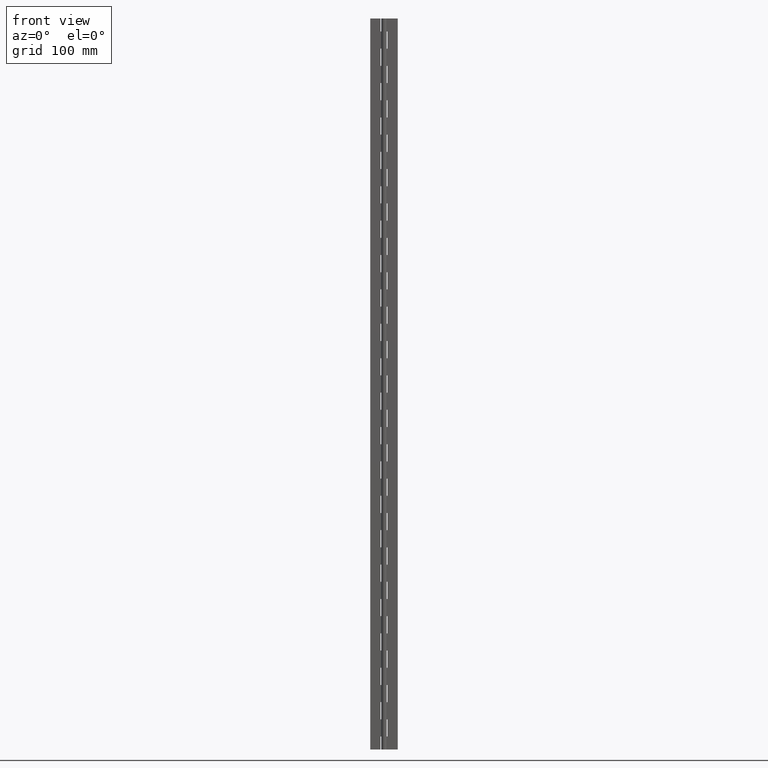
[diagram: clean part render]
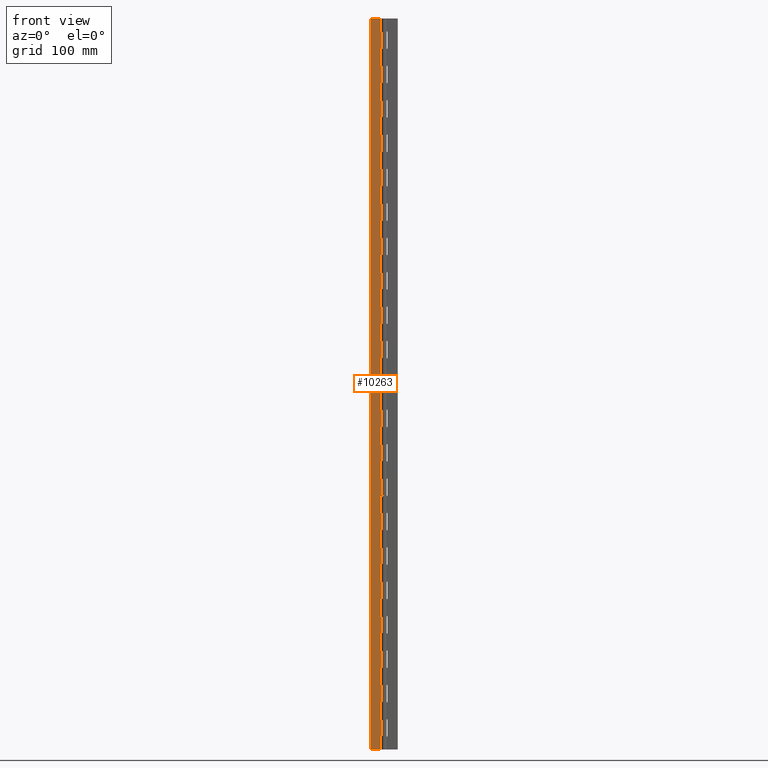
[diagram: same view with one face highlighted and labeled with its STEP entity id]
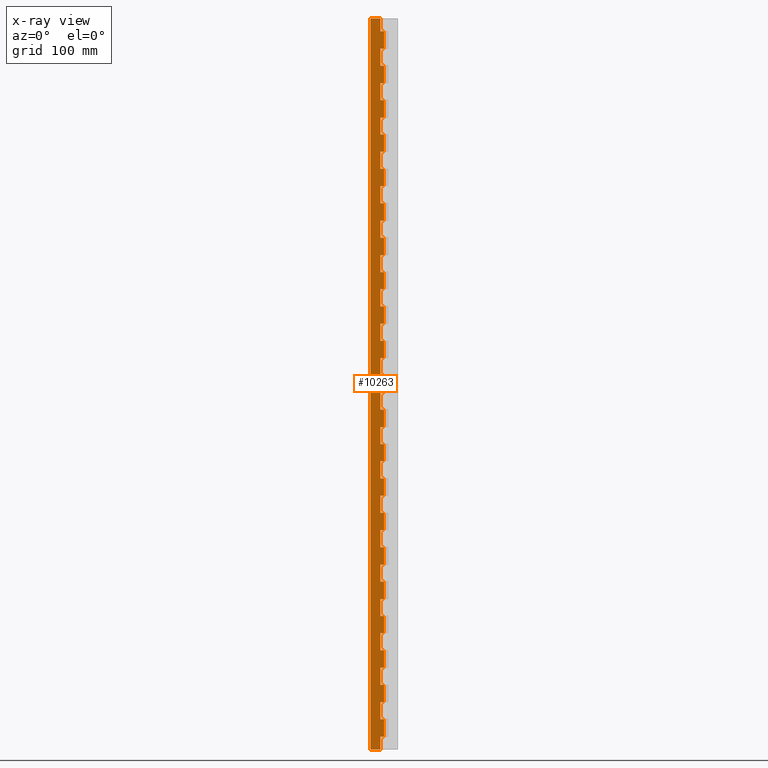
[diagram: x-ray of the same camera — body ghosted, the highlighted face saturated]
A machine part, front view. The second image highlights one B-rep face of the part: STEP entity #10263.
The next image is the same camera in x-ray: the body ghosted, the highlighted face saturated — about 0% of this face is hidden behind the body in this view.
In plain terms, the highlighted face is a freeform B-spline surface patch.
Its self-contained STEP definition (entity closure, byte-faithful):
#6327=CARTESIAN_POINT('',(1.071563E-016,1.750000000000000,15.000022000000151));
#6328=VERTEX_POINT('',#6327);
#6348=CARTESIAN_POINT('',(-4.0,1.750000000000030,15.000022000000151));
#6349=VERTEX_POINT('',#6348);
#6350=CARTESIAN_POINT('',(1.071563E-016,1.750000000000000,15.000022000000151));
#6351=CARTESIAN_POINT('',(-4.0,1.750000000000030,15.000022000000151));
#6352=QUASI_UNIFORM_CURVE('',1,(#6350,#6351),.UNSPECIFIED.,.F.,.U.);
#6353=EDGE_CURVE('',#6328,#6349,#6352,.T.);
#6375=CARTESIAN_POINT('',(-4.0,1.750000000000000,0.0));
#6376=VERTEX_POINT('',#6375);
#6377=CARTESIAN_POINT('',(-4.0,1.750000000000030,15.000022000000151));
#6378=CARTESIAN_POINT('',(-4.0,1.750000000000000,0.0));
#6379=QUASI_UNIFORM_CURVE('',1,(#6377,#6378),.UNSPECIFIED.,.F.,.U.);
#6380=EDGE_CURVE('',#6349,#6376,#6379,.T.);
#6433=CARTESIAN_POINT('',(-4.0,1.750000000000000,35.000022000000087));
#6434=VERTEX_POINT('',#6433);
#6440=CARTESIAN_POINT('',(1.071563E-016,1.750000000000000,35.000022000000087));
#6441=VERTEX_POINT('',#6440);
#6442=CARTESIAN_POINT('',(-4.0,1.750000000000000,35.000022000000087));
#6443=CARTESIAN_POINT('',(1.071563E-016,1.750000000000000,35.000022000000087));
#6444=QUASI_UNIFORM_CURVE('',1,(#6442,#6443),.UNSPECIFIED.,.F.,.U.);
#6445=EDGE_CURVE('',#6434,#6441,#6444,.T.);
#6511=CARTESIAN_POINT('',(1.071563E-016,1.750000000000000,55.000022000000101));
#6512=VERTEX_POINT('',#6511);
#6532=CARTESIAN_POINT('',(-4.0,1.750000000000030,55.000022000000101));
#6533=VERTEX_POINT('',#6532);
#6534=CARTESIAN_POINT('',(1.071563E-016,1.750000000000000,55.000022000000101));
#6535=CARTESIAN_POINT('',(-4.0,1.750000000000030,55.000022000000101));
#6536=QUASI_UNIFORM_CURVE('',1,(#6534,#6535),.UNSPECIFIED.,.F.,.U.);
#6537=EDGE_CURVE('',#6512,#6533,#6536,.T.);
#6559=CARTESIAN_POINT('',(-4.0,1.750000000000030,55.000022000000101));
#6560=CARTESIAN_POINT('',(-4.0,1.750000000000000,35.000022000000087));
#6561=QUASI_UNIFORM_CURVE('',1,(#6559,#6560),.UNSPECIFIED.,.F.,.U.);
#6562=EDGE_CURVE('',#6533,#6434,#6561,.T.);
#6609=CARTESIAN_POINT('',(-4.0,1.750000000000000,75.000022000000101));
#6610=VERTEX_POINT('',#6609);
#6616=CARTESIAN_POINT('',(1.071563E-016,1.750000000000000,75.000022000000101));
#6617=VERTEX_POINT('',#6616);
#6618=CARTESIAN_POINT('',(-4.0,1.750000000000000,75.000022000000101));
#6619=CARTESIAN_POINT('',(1.071563E-016,1.750000000000000,75.000022000000101));
#6620=QUASI_UNIFORM_CURVE('',1,(#6618,#6619),.UNSPECIFIED.,.F.,.U.);
#6621=EDGE_CURVE('',#6610,#6617,#6620,.T.);
#6687=CARTESIAN_POINT('',(1.071563E-016,1.750000000000000,95.000022000000101));
#6688=VERTEX_POINT('',#6687);
#6708=CARTESIAN_POINT('',(-4.0,1.750000000000030,95.000022000000101));
#6709=VERTEX_POINT('',#6708);
#6710=CARTESIAN_POINT('',(1.071563E-016,1.750000000000000,95.000022000000101));
#6711=CARTESIAN_POINT('',(-4.0,1.750000000000030,95.000022000000101));
#6712=QUASI_UNIFORM_CURVE('',1,(#6710,#6711),.UNSPECIFIED.,.F.,.U.);
#6713=EDGE_CURVE('',#6688,#6709,#6712,.T.);
#6735=CARTESIAN_POINT('',(-4.0,1.750000000000030,95.000022000000101));
#6736=CARTESIAN_POINT('',(-4.0,1.750000000000000,75.000022000000101));
#6737=QUASI_UNIFORM_CURVE('',1,(#6735,#6736),.UNSPECIFIED.,.F.,.U.);
#6738=EDGE_CURVE('',#6709,#6610,#6737,.T.);
#6785=CARTESIAN_POINT('',(-4.0,1.750000000000000,115.000022000000200));
#6786=VERTEX_POINT('',#6785);
#6792=CARTESIAN_POINT('',(1.071563E-016,1.750000000000000,115.000022000000200));
#6793=VERTEX_POINT('',#6792);
#6794=CARTESIAN_POINT('',(-4.0,1.750000000000000,115.000022000000200));
#6795=CARTESIAN_POINT('',(1.071563E-016,1.750000000000000,115.000022000000200));
#6796=QUASI_UNIFORM_CURVE('',1,(#6794,#6795),.UNSPECIFIED.,.F.,.U.);
#6797=EDGE_CURVE('',#6786,#6793,#6796,.T.);
#6863=CARTESIAN_POINT('',(1.071563E-016,1.750000000000000,135.000022000000200));
#6864=VERTEX_POINT('',#6863);
#6884=CARTESIAN_POINT('',(-4.0,1.750000000000030,135.000022000000200));
#6885=VERTEX_POINT('',#6884);
#6886=CARTESIAN_POINT('',(1.071563E-016,1.750000000000000,135.000022000000200));
#6887=CARTESIAN_POINT('',(-4.0,1.750000000000030,135.000022000000200));
#6888=QUASI_UNIFORM_CURVE('',1,(#6886,#6887),.UNSPECIFIED.,.F.,.U.);
#6889=EDGE_CURVE('',#6864,#6885,#6888,.T.);
#6911=CARTESIAN_POINT('',(-4.0,1.750000000000030,135.000022000000200));
#6912=CARTESIAN_POINT('',(-4.0,1.750000000000000,115.000022000000200));
#6913=QUASI_UNIFORM_CURVE('',1,(#6911,#6912),.UNSPECIFIED.,.F.,.U.);
#6914=EDGE_CURVE('',#6885,#6786,#6913,.T.);
#6961=CARTESIAN_POINT('',(-4.0,1.750000000000000,155.000022000000000));
#6962=VERTEX_POINT('',#6961);
#6968=CARTESIAN_POINT('',(1.071563E-016,1.750000000000000,155.000022000000000));
#6969=VERTEX_POINT('',#6968);
#6970=CARTESIAN_POINT('',(-4.0,1.750000000000000,155.000022000000000));
#6971=CARTESIAN_POINT('',(1.071563E-016,1.750000000000000,155.000022000000000));
#6972=QUASI_UNIFORM_CURVE('',1,(#6970,#6971),.UNSPECIFIED.,.F.,.U.);
#6973=EDGE_CURVE('',#6962,#6969,#6972,.T.);
#7039=CARTESIAN_POINT('',(1.071563E-016,1.750000000000000,175.000022000000000));
#7040=VERTEX_POINT('',#7039);
#7060=CARTESIAN_POINT('',(-4.0,1.750000000000030,175.000022000000000));
#7061=VERTEX_POINT('',#7060);
#7062=CARTESIAN_POINT('',(1.071563E-016,1.750000000000000,175.000022000000000));
#7063=CARTESIAN_POINT('',(-4.0,1.750000000000030,175.000022000000000));
#7064=QUASI_UNIFORM_CURVE('',1,(#7062,#7063),.UNSPECIFIED.,.F.,.U.);
#7065=EDGE_CURVE('',#7040,#7061,#7064,.T.);
#7087=CARTESIAN_POINT('',(-4.0,1.750000000000030,175.000022000000000));
#7088=CARTESIAN_POINT('',(-4.0,1.750000000000000,155.000022000000000));
#7089=QUASI_UNIFORM_CURVE('',1,(#7087,#7088),.UNSPECIFIED.,.F.,.U.);
#7090=EDGE_CURVE('',#7061,#6962,#7089,.T.);
#7137=CARTESIAN_POINT('',(-4.0,1.750000000000000,195.000022000000000));
#7138=VERTEX_POINT('',#7137);
#7144=CARTESIAN_POINT('',(1.071563E-016,1.750000000000000,195.000022000000000));
#7145=VERTEX_POINT('',#7144);
#7146=CARTESIAN_POINT('',(-4.0,1.750000000000000,195.000022000000000));
#7147=CARTESIAN_POINT('',(1.071563E-016,1.750000000000000,195.000022000000000));
#7148=QUASI_UNIFORM_CURVE('',1,(#7146,#7147),.UNSPECIFIED.,.F.,.U.);
#7149=EDGE_CURVE('',#7138,#7145,#7148,.T.);
#7215=CARTESIAN_POINT('',(1.071563E-016,1.750000000000000,215.000022000000000));
#7216=VERTEX_POINT('',#7215);
#7236=CARTESIAN_POINT('',(-4.0,1.750000000000030,215.000022000000000));
#7237=VERTEX_POINT('',#7236);
#7238=CARTESIAN_POINT('',(1.071563E-016,1.750000000000000,215.000022000000000));
#7239=CARTESIAN_POINT('',(-4.0,1.750000000000030,215.000022000000000));
#7240=QUASI_UNIFORM_CURVE('',1,(#7238,#7239),.UNSPECIFIED.,.F.,.U.);
#7241=EDGE_CURVE('',#7216,#7237,#7240,.T.);
#7263=CARTESIAN_POINT('',(-4.0,1.750000000000030,215.000022000000000));
#7264=CARTESIAN_POINT('',(-4.0,1.750000000000000,195.000022000000000));
#7265=QUASI_UNIFORM_CURVE('',1,(#7263,#7264),.UNSPECIFIED.,.F.,.U.);
#7266=EDGE_CURVE('',#7237,#7138,#7265,.T.);
#7313=CARTESIAN_POINT('',(-4.0,1.750000000000000,235.000022000000000));
#7314=VERTEX_POINT('',#7313);
#7320=CARTESIAN_POINT('',(1.071563E-016,1.750000000000000,235.000022000000000));
#7321=VERTEX_POINT('',#7320);
#7322=CARTESIAN_POINT('',(-4.0,1.750000000000000,235.000022000000000));
#7323=CARTESIAN_POINT('',(1.071563E-016,1.750000000000000,235.000022000000000));
#7324=QUASI_UNIFORM_CURVE('',1,(#7322,#7323),.UNSPECIFIED.,.F.,.U.);
#7325=EDGE_CURVE('',#7314,#7321,#7324,.T.);
#7391=CARTESIAN_POINT('',(1.071563E-016,1.750000000000000,255.000022000000000));
#7392=VERTEX_POINT('',#7391);
#7412=CARTESIAN_POINT('',(-4.0,1.750000000000030,255.000022000000000));
#7413=VERTEX_POINT('',#7412);
#7414=CARTESIAN_POINT('',(1.071563E-016,1.750000000000000,255.000022000000000));
#7415=CARTESIAN_POINT('',(-4.0,1.750000000000030,255.000022000000000));
#7416=QUASI_UNIFORM_CURVE('',1,(#7414,#7415),.UNSPECIFIED.,.F.,.U.);
#7417=EDGE_CURVE('',#7392,#7413,#7416,.T.);
#7439=CARTESIAN_POINT('',(-4.0,1.750000000000030,255.000022000000000));
#7440=CARTESIAN_POINT('',(-4.0,1.750000000000000,235.000022000000000));
#7441=QUASI_UNIFORM_CURVE('',1,(#7439,#7440),.UNSPECIFIED.,.F.,.U.);
#7442=EDGE_CURVE('',#7413,#7314,#7441,.T.);
#7489=CARTESIAN_POINT('',(-4.0,1.750000000000000,275.000022000000000));
#7490=VERTEX_POINT('',#7489);
#7496=CARTESIAN_POINT('',(1.071563E-016,1.750000000000000,275.000022000000000));
#7497=VERTEX_POINT('',#7496);
#7498=CARTESIAN_POINT('',(-4.0,1.750000000000000,275.000022000000000));
#7499=CARTESIAN_POINT('',(1.071563E-016,1.750000000000000,275.000022000000000));
#7500=QUASI_UNIFORM_CURVE('',1,(#7498,#7499),.UNSPECIFIED.,.F.,.U.);
#7501=EDGE_CURVE('',#7490,#7497,#7500,.T.);
#7567=CARTESIAN_POINT('',(1.071563E-016,1.750000000000000,295.000021999999890));
#7568=VERTEX_POINT('',#7567);
#7588=CARTESIAN_POINT('',(-4.0,1.750000000000030,295.000021999999890));
#7589=VERTEX_POINT('',#7588);
#7590=CARTESIAN_POINT('',(1.071563E-016,1.750000000000000,295.000021999999890));
#7591=CARTESIAN_POINT('',(-4.0,1.750000000000030,295.000021999999890));
#7592=QUASI_UNIFORM_CURVE('',1,(#7590,#7591),.UNSPECIFIED.,.F.,.U.);
#7593=EDGE_CURVE('',#7568,#7589,#7592,.T.);
#7615=CARTESIAN_POINT('',(-4.0,1.750000000000030,295.000021999999890));
#7616=CARTESIAN_POINT('',(-4.0,1.750000000000000,275.000022000000000));
#7617=QUASI_UNIFORM_CURVE('',1,(#7615,#7616),.UNSPECIFIED.,.F.,.U.);
#7618=EDGE_CURVE('',#7589,#7490,#7617,.T.);
#7665=CARTESIAN_POINT('',(-4.0,1.750000000000000,315.000022000000000));
#7666=VERTEX_POINT('',#7665);
#7672=CARTESIAN_POINT('',(1.071563E-016,1.750000000000000,315.000022000000000));
#7673=VERTEX_POINT('',#7672);
#7674=CARTESIAN_POINT('',(-4.0,1.750000000000000,315.000022000000000));
#7675=CARTESIAN_POINT('',(1.071563E-016,1.750000000000000,315.000022000000000));
#7676=QUASI_UNIFORM_CURVE('',1,(#7674,#7675),.UNSPECIFIED.,.F.,.U.);
#7677=EDGE_CURVE('',#7666,#7673,#7676,.T.);
#7743=CARTESIAN_POINT('',(1.071563E-016,1.750000000000000,335.000022000000000));
#7744=VERTEX_POINT('',#7743);
#7764=CARTESIAN_POINT('',(-4.0,1.750000000000030,335.000022000000000));
#7765=VERTEX_POINT('',#7764);
#7766=CARTESIAN_POINT('',(1.071563E-016,1.750000000000000,335.000022000000000));
#7767=CARTESIAN_POINT('',(-4.0,1.750000000000030,335.000022000000000));
#7768=QUASI_UNIFORM_CURVE('',1,(#7766,#7767),.UNSPECIFIED.,.F.,.U.);
#7769=EDGE_CURVE('',#7744,#7765,#7768,.T.);
#7791=CARTESIAN_POINT('',(-4.0,1.750000000000030,335.000022000000000));
#7792=CARTESIAN_POINT('',(-4.0,1.750000000000000,315.000022000000000));
#7793=QUASI_UNIFORM_CURVE('',1,(#7791,#7792),.UNSPECIFIED.,.F.,.U.);
#7794=EDGE_CURVE('',#7765,#7666,#7793,.T.);
#7841=CARTESIAN_POINT('',(-4.0,1.750000000000000,355.000022000000000));
#7842=VERTEX_POINT('',#7841);
#7848=CARTESIAN_POINT('',(1.071563E-016,1.750000000000000,355.000022000000000));
#7849=VERTEX_POINT('',#7848);
#7850=CARTESIAN_POINT('',(-4.0,1.750000000000000,355.000022000000000));
#7851=CARTESIAN_POINT('',(1.071563E-016,1.750000000000000,355.000022000000000));
#7852=QUASI_UNIFORM_CURVE('',1,(#7850,#7851),.UNSPECIFIED.,.F.,.U.);
#7853=EDGE_CURVE('',#7842,#7849,#7852,.T.);
#7919=CARTESIAN_POINT('',(1.071563E-016,1.750000000000000,375.000022000000000));
#7920=VERTEX_POINT('',#7919);
#7940=CARTESIAN_POINT('',(-4.0,1.750000000000030,375.000022000000000));
#7941=VERTEX_POINT('',#7940);
#7942=CARTESIAN_POINT('',(1.071563E-016,1.750000000000000,375.000022000000000));
#7943=CARTESIAN_POINT('',(-4.0,1.750000000000030,375.000022000000000));
#7944=QUASI_UNIFORM_CURVE('',1,(#7942,#7943),.UNSPECIFIED.,.F.,.U.);
#7945=EDGE_CURVE('',#7920,#7941,#7944,.T.);
#7967=CARTESIAN_POINT('',(-4.0,1.750000000000030,375.000022000000000));
#7968=CARTESIAN_POINT('',(-4.0,1.750000000000000,355.000022000000000));
#7969=QUASI_UNIFORM_CURVE('',1,(#7967,#7968),.UNSPECIFIED.,.F.,.U.);
#7970=EDGE_CURVE('',#7941,#7842,#7969,.T.);
#8017=CARTESIAN_POINT('',(-4.0,1.750000000000000,395.000022000000000));
#8018=VERTEX_POINT('',#8017);
#8024=CARTESIAN_POINT('',(1.071563E-016,1.750000000000000,395.000022000000000));
#8025=VERTEX_POINT('',#8024);
#8026=CARTESIAN_POINT('',(-4.0,1.750000000000000,395.000022000000000));
#8027=CARTESIAN_POINT('',(1.071563E-016,1.750000000000000,395.000022000000000));
#8028=QUASI_UNIFORM_CURVE('',1,(#8026,#8027),.UNSPECIFIED.,.F.,.U.);
#8029=EDGE_CURVE('',#8018,#8025,#8028,.T.);
#8095=CARTESIAN_POINT('',(1.071563E-016,1.750000000000000,415.000022000000000));
#8096=VERTEX_POINT('',#8095);
#8116=CARTESIAN_POINT('',(-4.0,1.750000000000030,415.000022000000000));
#8117=VERTEX_POINT('',#8116);
#8118=CARTESIAN_POINT('',(1.071563E-016,1.750000000000000,415.000022000000000));
#8119=CARTESIAN_POINT('',(-4.0,1.750000000000030,415.000022000000000));
#8120=QUASI_UNIFORM_CURVE('',1,(#8118,#8119),.UNSPECIFIED.,.F.,.U.);
#8121=EDGE_CURVE('',#8096,#8117,#8120,.T.);
#8143=CARTESIAN_POINT('',(-4.0,1.750000000000030,415.000022000000000));
#8144=CARTESIAN_POINT('',(-4.0,1.750000000000000,395.000022000000000));
#8145=QUASI_UNIFORM_CURVE('',1,(#8143,#8144),.UNSPECIFIED.,.F.,.U.);
#8146=EDGE_CURVE('',#8117,#8018,#8145,.T.);
#8193=CARTESIAN_POINT('',(-4.0,1.750000000000000,435.000022000000000));
#8194=VERTEX_POINT('',#8193);
#8200=CARTESIAN_POINT('',(1.071563E-016,1.750000000000000,435.000022000000000));
#8201=VERTEX_POINT('',#8200);
#8202=CARTESIAN_POINT('',(-4.0,1.750000000000000,435.000022000000000));
#8203=CARTESIAN_POINT('',(1.071563E-016,1.750000000000000,435.000022000000000));
#8204=QUASI_UNIFORM_CURVE('',1,(#8202,#8203),.UNSPECIFIED.,.F.,.U.);
#8205=EDGE_CURVE('',#8194,#8201,#8204,.T.);
#8271=CARTESIAN_POINT('',(1.071563E-016,1.750000000000000,455.000022000000000));
#8272=VERTEX_POINT('',#8271);
#8292=CARTESIAN_POINT('',(-4.0,1.750000000000030,455.000022000000000));
#8293=VERTEX_POINT('',#8292);
#8294=CARTESIAN_POINT('',(1.071563E-016,1.750000000000000,455.000022000000000));
#8295=CARTESIAN_POINT('',(-4.0,1.750000000000030,455.000022000000000));
#8296=QUASI_UNIFORM_CURVE('',1,(#8294,#8295),.UNSPECIFIED.,.F.,.U.);
#8297=EDGE_CURVE('',#8272,#8293,#8296,.T.);
#8319=CARTESIAN_POINT('',(-4.0,1.750000000000030,455.000022000000000));
#8320=CARTESIAN_POINT('',(-4.0,1.750000000000000,435.000022000000000));
#8321=QUASI_UNIFORM_CURVE('',1,(#8319,#8320),.UNSPECIFIED.,.F.,.U.);
#8322=EDGE_CURVE('',#8293,#8194,#8321,.T.);
#8369=CARTESIAN_POINT('',(-4.0,1.750000000000000,475.000022000000000));
#8370=VERTEX_POINT('',#8369);
#8376=CARTESIAN_POINT('',(1.071563E-016,1.750000000000000,475.000022000000000));
#8377=VERTEX_POINT('',#8376);
#8378=CARTESIAN_POINT('',(-4.0,1.750000000000000,475.000022000000000));
#8379=CARTESIAN_POINT('',(1.071563E-016,1.750000000000000,475.000022000000000));
#8380=QUASI_UNIFORM_CURVE('',1,(#8378,#8379),.UNSPECIFIED.,.F.,.U.);
#8381=EDGE_CURVE('',#8370,#8377,#8380,.T.);
#8447=CARTESIAN_POINT('',(1.071563E-016,1.750000000000000,495.000022000000000));
#8448=VERTEX_POINT('',#8447);
#8468=CARTESIAN_POINT('',(-4.0,1.750000000000030,495.000022000000000));
#8469=VERTEX_POINT('',#8468);
#8470=CARTESIAN_POINT('',(1.071563E-016,1.750000000000000,495.000022000000000));
#8471=CARTESIAN_POINT('',(-4.0,1.750000000000030,495.000022000000000));
#8472=QUASI_UNIFORM_CURVE('',1,(#8470,#8471),.UNSPECIFIED.,.F.,.U.);
#8473=EDGE_CURVE('',#8448,#8469,#8472,.T.);
#8495=CARTESIAN_POINT('',(-4.0,1.750000000000030,495.000022000000000));
#8496=CARTESIAN_POINT('',(-4.0,1.750000000000000,475.000022000000000));
#8497=QUASI_UNIFORM_CURVE('',1,(#8495,#8496),.UNSPECIFIED.,.F.,.U.);
#8498=EDGE_CURVE('',#8469,#8370,#8497,.T.);
#8545=CARTESIAN_POINT('',(-4.0,1.750000000000000,515.000021999999940));
#8546=VERTEX_POINT('',#8545);
#8552=CARTESIAN_POINT('',(1.071563E-016,1.750000000000000,515.000021999999940));
#8553=VERTEX_POINT('',#8552);
#8554=CARTESIAN_POINT('',(-4.0,1.750000000000000,515.000021999999940));
#8555=CARTESIAN_POINT('',(1.071563E-016,1.750000000000000,515.000021999999940));
#8556=QUASI_UNIFORM_CURVE('',1,(#8554,#8555),.UNSPECIFIED.,.F.,.U.);
#8557=EDGE_CURVE('',#8546,#8553,#8556,.T.);
#8623=CARTESIAN_POINT('',(1.071563E-016,1.750000000000000,535.000021999999940));
#8624=VERTEX_POINT('',#8623);
#8644=CARTESIAN_POINT('',(-4.0,1.750000000000030,535.000021999999940));
#8645=VERTEX_POINT('',#8644);
#8646=CARTESIAN_POINT('',(1.071563E-016,1.750000000000000,535.000021999999940));
#8647=CARTESIAN_POINT('',(-4.0,1.750000000000030,535.000021999999940));
#8648=QUASI_UNIFORM_CURVE('',1,(#8646,#8647),.UNSPECIFIED.,.F.,.U.);
#8649=EDGE_CURVE('',#8624,#8645,#8648,.T.);
#8671=CARTESIAN_POINT('',(-4.0,1.750000000000030,535.000021999999940));
#8672=CARTESIAN_POINT('',(-4.0,1.750000000000000,515.000021999999940));
#8673=QUASI_UNIFORM_CURVE('',1,(#8671,#8672),.UNSPECIFIED.,.F.,.U.);
#8674=EDGE_CURVE('',#8645,#8546,#8673,.T.);
#8721=CARTESIAN_POINT('',(-4.0,1.750000000000000,555.000021999999940));
#8722=VERTEX_POINT('',#8721);
#8728=CARTESIAN_POINT('',(1.071563E-016,1.750000000000000,555.000021999999940));
#8729=VERTEX_POINT('',#8728);
#8730=CARTESIAN_POINT('',(-4.0,1.750000000000000,555.000021999999940));
#8731=CARTESIAN_POINT('',(1.071563E-016,1.750000000000000,555.000021999999940));
#8732=QUASI_UNIFORM_CURVE('',1,(#8730,#8731),.UNSPECIFIED.,.F.,.U.);
#8733=EDGE_CURVE('',#8722,#8729,#8732,.T.);
#8799=CARTESIAN_POINT('',(1.071563E-016,1.750000000000000,575.000021999999940));
#8800=VERTEX_POINT('',#8799);
#8820=CARTESIAN_POINT('',(-4.0,1.750000000000030,575.000021999999940));
#8821=VERTEX_POINT('',#8820);
#8822=CARTESIAN_POINT('',(1.071563E-016,1.750000000000000,575.000021999999940));
#8823=CARTESIAN_POINT('',(-4.0,1.750000000000030,575.000021999999940));
#8824=QUASI_UNIFORM_CURVE('',1,(#8822,#8823),.UNSPECIFIED.,.F.,.U.);
#8825=EDGE_CURVE('',#8800,#8821,#8824,.T.);
#8847=CARTESIAN_POINT('',(-4.0,1.750000000000030,575.000021999999940));
#8848=CARTESIAN_POINT('',(-4.0,1.750000000000000,555.000021999999940));
#8849=QUASI_UNIFORM_CURVE('',1,(#8847,#8848),.UNSPECIFIED.,.F.,.U.);
#8850=EDGE_CURVE('',#8821,#8722,#8849,.T.);
#8897=CARTESIAN_POINT('',(-4.0,1.750000000000000,595.000022000000060));
#8898=VERTEX_POINT('',#8897);
#8904=CARTESIAN_POINT('',(1.071563E-016,1.750000000000000,595.000022000000060));
#8905=VERTEX_POINT('',#8904);
#8906=CARTESIAN_POINT('',(-4.0,1.750000000000000,595.000022000000060));
#8907=CARTESIAN_POINT('',(1.071563E-016,1.750000000000000,595.000022000000060));
#8908=QUASI_UNIFORM_CURVE('',1,(#8906,#8907),.UNSPECIFIED.,.F.,.U.);
#8909=EDGE_CURVE('',#8898,#8905,#8908,.T.);
#8975=CARTESIAN_POINT('',(1.071563E-016,1.750000000000000,615.000022000000060));
#8976=VERTEX_POINT('',#8975);
#8996=CARTESIAN_POINT('',(-4.0,1.750000000000030,615.000022000000060));
#8997=VERTEX_POINT('',#8996);
#8998=CARTESIAN_POINT('',(1.071563E-016,1.750000000000000,615.000022000000060));
#8999=CARTESIAN_POINT('',(-4.0,1.750000000000030,615.000022000000060));
#9000=QUASI_UNIFORM_CURVE('',1,(#8998,#8999),.UNSPECIFIED.,.F.,.U.);
#9001=EDGE_CURVE('',#8976,#8997,#9000,.T.);
#9023=CARTESIAN_POINT('',(-4.0,1.750000000000030,615.000022000000060));
#9024=CARTESIAN_POINT('',(-4.0,1.750000000000000,595.000022000000060));
#9025=QUASI_UNIFORM_CURVE('',1,(#9023,#9024),.UNSPECIFIED.,.F.,.U.);
#9026=EDGE_CURVE('',#8997,#8898,#9025,.T.);
#9073=CARTESIAN_POINT('',(-4.0,1.750000000000000,635.000022000000060));
#9074=VERTEX_POINT('',#9073);
#9080=CARTESIAN_POINT('',(1.071563E-016,1.750000000000000,635.000022000000060));
#9081=VERTEX_POINT('',#9080);
#9082=CARTESIAN_POINT('',(-4.0,1.750000000000000,635.000022000000060));
#9083=CARTESIAN_POINT('',(1.071563E-016,1.750000000000000,635.000022000000060));
#9084=QUASI_UNIFORM_CURVE('',1,(#9082,#9083),.UNSPECIFIED.,.F.,.U.);
#9085=EDGE_CURVE('',#9074,#9081,#9084,.T.);
#9151=CARTESIAN_POINT('',(1.071563E-016,1.750000000000000,655.000021999999940));
#9152=VERTEX_POINT('',#9151);
#9172=CARTESIAN_POINT('',(-4.0,1.750000000000030,655.000021999999940));
#9173=VERTEX_POINT('',#9172);
#9174=CARTESIAN_POINT('',(1.071563E-016,1.750000000000000,655.000021999999940));
#9175=CARTESIAN_POINT('',(-4.0,1.750000000000030,655.000021999999940));
#9176=QUASI_UNIFORM_CURVE('',1,(#9174,#9175),.UNSPECIFIED.,.F.,.U.);
#9177=EDGE_CURVE('',#9152,#9173,#9176,.T.);
#9199=CARTESIAN_POINT('',(-4.0,1.750000000000030,655.000021999999940));
#9200=CARTESIAN_POINT('',(-4.0,1.750000000000000,635.000022000000060));
#9201=QUASI_UNIFORM_CURVE('',1,(#9199,#9200),.UNSPECIFIED.,.F.,.U.);
#9202=EDGE_CURVE('',#9173,#9074,#9201,.T.);
#9249=CARTESIAN_POINT('',(-4.0,1.750000000000000,675.000021999999940));
#9250=VERTEX_POINT('',#9249);
#9256=CARTESIAN_POINT('',(1.071563E-016,1.750000000000000,675.000021999999940));
#9257=VERTEX_POINT('',#9256);
#9258=CARTESIAN_POINT('',(-4.0,1.750000000000000,675.000021999999940));
#9259=CARTESIAN_POINT('',(1.071563E-016,1.750000000000000,675.000021999999940));
#9260=QUASI_UNIFORM_CURVE('',1,(#9258,#9259),.UNSPECIFIED.,.F.,.U.);
#9261=EDGE_CURVE('',#9250,#9257,#9260,.T.);
#9327=CARTESIAN_POINT('',(1.071563E-016,1.750000000000000,695.000021999999940));
#9328=VERTEX_POINT('',#9327);
#9348=CARTESIAN_POINT('',(-4.0,1.750000000000030,695.000021999999940));
#9349=VERTEX_POINT('',#9348);
#9350=CARTESIAN_POINT('',(1.071563E-016,1.750000000000000,695.000021999999940));
#9351=CARTESIAN_POINT('',(-4.0,1.750000000000030,695.000021999999940));
#9352=QUASI_UNIFORM_CURVE('',1,(#9350,#9351),.UNSPECIFIED.,.F.,.U.);
#9353=EDGE_CURVE('',#9328,#9349,#9352,.T.);
#9375=CARTESIAN_POINT('',(-4.0,1.750000000000030,695.000021999999940));
#9376=CARTESIAN_POINT('',(-4.0,1.750000000000000,675.000021999999940));
#9377=QUASI_UNIFORM_CURVE('',1,(#9375,#9376),.UNSPECIFIED.,.F.,.U.);
#9378=EDGE_CURVE('',#9349,#9250,#9377,.T.);
#9425=CARTESIAN_POINT('',(-4.0,1.750000000000000,715.000022000000060));
#9426=VERTEX_POINT('',#9425);
#9432=CARTESIAN_POINT('',(1.071563E-016,1.750000000000000,715.000022000000060));
#9433=VERTEX_POINT('',#9432);
#9434=CARTESIAN_POINT('',(-4.0,1.750000000000000,715.000022000000060));
#9435=CARTESIAN_POINT('',(1.071563E-016,1.750000000000000,715.000022000000060));
#9436=QUASI_UNIFORM_CURVE('',1,(#9434,#9435),.UNSPECIFIED.,.F.,.U.);
#9437=EDGE_CURVE('',#9426,#9433,#9436,.T.);
#9503=CARTESIAN_POINT('',(1.071563E-016,1.750000000000000,735.000022000000060));
#9504=VERTEX_POINT('',#9503);
#9524=CARTESIAN_POINT('',(-4.0,1.750000000000030,735.000022000000060));
#9525=VERTEX_POINT('',#9524);
#9526=CARTESIAN_POINT('',(1.071563E-016,1.750000000000000,735.000022000000060));
#9527=CARTESIAN_POINT('',(-4.0,1.750000000000030,735.000022000000060));
#9528=QUASI_UNIFORM_CURVE('',1,(#9526,#9527),.UNSPECIFIED.,.F.,.U.);
#9529=EDGE_CURVE('',#9504,#9525,#9528,.T.);
#9551=CARTESIAN_POINT('',(-4.0,1.750000000000030,735.000022000000060));
#9552=CARTESIAN_POINT('',(-4.0,1.750000000000000,715.000022000000060));
#9553=QUASI_UNIFORM_CURVE('',1,(#9551,#9552),.UNSPECIFIED.,.F.,.U.);
#9554=EDGE_CURVE('',#9525,#9426,#9553,.T.);
#9601=CARTESIAN_POINT('',(-4.0,1.750000000000000,755.000022000000060));
#9602=VERTEX_POINT('',#9601);
#9608=CARTESIAN_POINT('',(1.071563E-016,1.750000000000000,755.000022000000060));
#9609=VERTEX_POINT('',#9608);
#9610=CARTESIAN_POINT('',(-4.0,1.750000000000000,755.000022000000060));
#9611=CARTESIAN_POINT('',(1.071563E-016,1.750000000000000,755.000022000000060));
#9612=QUASI_UNIFORM_CURVE('',1,(#9610,#9611),.UNSPECIFIED.,.F.,.U.);
#9613=EDGE_CURVE('',#9602,#9609,#9612,.T.);
#9679=CARTESIAN_POINT('',(1.071563E-016,1.750000000000000,775.000021999999940));
#9680=VERTEX_POINT('',#9679);
#9700=CARTESIAN_POINT('',(-4.0,1.750000000000030,775.000021999999940));
#9701=VERTEX_POINT('',#9700);
#9702=CARTESIAN_POINT('',(1.071563E-016,1.750000000000000,775.000021999999940));
#9703=CARTESIAN_POINT('',(-4.0,1.750000000000030,775.000021999999940));
#9704=QUASI_UNIFORM_CURVE('',1,(#9702,#9703),.UNSPECIFIED.,.F.,.U.);
#9705=EDGE_CURVE('',#9680,#9701,#9704,.T.);
#9727=CARTESIAN_POINT('',(-4.0,1.750000000000030,775.000021999999940));
#9728=CARTESIAN_POINT('',(-4.0,1.750000000000000,755.000022000000060));
#9729=QUASI_UNIFORM_CURVE('',1,(#9727,#9728),.UNSPECIFIED.,.F.,.U.);
#9730=EDGE_CURVE('',#9701,#9602,#9729,.T.);
#9777=CARTESIAN_POINT('',(-4.0,1.750000000000000,795.000021999999940));
#9778=VERTEX_POINT('',#9777);
#9784=CARTESIAN_POINT('',(1.071563E-016,1.750000000000000,795.000021999999940));
#9785=VERTEX_POINT('',#9784);
#9786=CARTESIAN_POINT('',(-4.0,1.750000000000000,795.000021999999940));
#9787=CARTESIAN_POINT('',(1.071563E-016,1.750000000000000,795.000021999999940));
#9788=QUASI_UNIFORM_CURVE('',1,(#9786,#9787),.UNSPECIFIED.,.F.,.U.);
#9789=EDGE_CURVE('',#9778,#9785,#9788,.T.);
#9855=CARTESIAN_POINT('',(1.071563E-016,1.750000000000000,815.000021999999940));
#9856=VERTEX_POINT('',#9855);
#9876=CARTESIAN_POINT('',(-4.0,1.750000000000030,815.000021999999940));
#9877=VERTEX_POINT('',#9876);
#9878=CARTESIAN_POINT('',(1.071563E-016,1.750000000000000,815.000021999999940));
#9879=CARTESIAN_POINT('',(-4.0,1.750000000000030,815.000021999999940));
#9880=QUASI_UNIFORM_CURVE('',1,(#9878,#9879),.UNSPECIFIED.,.F.,.U.);
#9881=EDGE_CURVE('',#9856,#9877,#9880,.T.);
#9903=CARTESIAN_POINT('',(-4.0,1.750000000000030,815.000021999999940));
#9904=CARTESIAN_POINT('',(-4.0,1.750000000000000,795.000021999999940));
#9905=QUASI_UNIFORM_CURVE('',1,(#9903,#9904),.UNSPECIFIED.,.F.,.U.);
#9906=EDGE_CURVE('',#9877,#9778,#9905,.T.);
#9953=CARTESIAN_POINT('',(-4.0,1.750000000000030,835.000022000000060));
#9954=VERTEX_POINT('',#9953);
#9960=CARTESIAN_POINT('',(1.071563E-016,1.750000000000000,835.000022000000060));
#9961=VERTEX_POINT('',#9960);
#9962=CARTESIAN_POINT('',(-4.0,1.750000000000030,835.000022000000060));
#9963=CARTESIAN_POINT('',(1.071563E-016,1.750000000000000,835.000022000000060));
#9964=QUASI_UNIFORM_CURVE('',1,(#9962,#9963),.UNSPECIFIED.,.F.,.U.);
#9965=EDGE_CURVE('',#9954,#9961,#9964,.T.);
#10001=CARTESIAN_POINT('',(-4.0,1.750000000000030,850.000022000000060));
#10002=VERTEX_POINT('',#10001);
#10003=CARTESIAN_POINT('',(-4.0,1.750000000000030,850.000022000000060));
#10004=CARTESIAN_POINT('',(-4.0,1.750000000000030,835.000022000000060));
#10005=QUASI_UNIFORM_CURVE('',1,(#10003,#10004),.UNSPECIFIED.,.F.,.U.);
#10006=EDGE_CURVE('',#10002,#9954,#10005,.T.);
#10030=CARTESIAN_POINT('',(-16.0,1.750000000000000,0.0));
#10031=VERTEX_POINT('',#10030);
#10032=CARTESIAN_POINT('',(-4.0,1.750000000000000,0.0));
#10033=CARTESIAN_POINT('',(-16.0,1.750000000000000,0.0));
#10034=QUASI_UNIFORM_CURVE('',1,(#10032,#10033),.UNSPECIFIED.,.F.,.U.);
#10035=EDGE_CURVE('',#6376,#10031,#10034,.T.);
#10057=CARTESIAN_POINT('',(-16.0,1.750000000000000,850.000022000000060));
#10058=VERTEX_POINT('',#10057);
#10059=CARTESIAN_POINT('',(-4.0,1.750000000000030,850.000022000000060));
#10060=CARTESIAN_POINT('',(-16.0,1.750000000000000,850.000022000000060));
#10061=QUASI_UNIFORM_CURVE('',1,(#10059,#10060),.UNSPECIFIED.,.F.,.U.);
#10062=EDGE_CURVE('',#10002,#10058,#10061,.T.);
#10080=CARTESIAN_POINT('',(-16.799199968988891,1.750000000000000,892.457497513859040));
#10081=CARTESIAN_POINT('',(-16.799199968988891,1.750000000000000,-42.457521111413350));
#10082=CARTESIAN_POINT('',(0.799200398142339,1.750000000000000,892.457497513859040));
#10083=CARTESIAN_POINT('',(0.799200398142339,1.750000000000000,-42.457521111413350));
#10084=B_SPLINE_SURFACE_WITH_KNOTS('',1,1,((#10080,#10082),(#10081,#10083)),.UNSPECIFIED.,.F.,.F.,.U.,(2,2),(2,2),(0.0,934.915018625272410),(0.0,17.598400367131230),.UNSPECIFIED.);
#10085=ORIENTED_EDGE('',*,*,#6380,.F.);
#10086=ORIENTED_EDGE('',*,*,#6353,.F.);
#10087=CARTESIAN_POINT('',(1.071563E-016,1.750000000000000,35.000022000000087));
#10088=CARTESIAN_POINT('',(1.071563E-016,1.750000000000000,15.000022000000151));
#10089=QUASI_UNIFORM_CURVE('',1,(#10087,#10088),.UNSPECIFIED.,.F.,.U.);
#10090=EDGE_CURVE('',#6441,#6328,#10089,.T.);
#10091=ORIENTED_EDGE('',*,*,#10090,.F.);
#10092=ORIENTED_EDGE('',*,*,#6445,.F.);
#10093=ORIENTED_EDGE('',*,*,#6562,.F.);
#10094=ORIENTED_EDGE('',*,*,#6537,.F.);
#10095=CARTESIAN_POINT('',(1.071563E-016,1.750000000000000,75.000022000000101));
#10096=CARTESIAN_POINT('',(1.071563E-016,1.750000000000000,55.000022000000101));
#10097=QUASI_UNIFORM_CURVE('',1,(#10095,#10096),.UNSPECIFIED.,.F.,.U.);
#10098=EDGE_CURVE('',#6617,#6512,#10097,.T.);
#10099=ORIENTED_EDGE('',*,*,#10098,.F.);
#10100=ORIENTED_EDGE('',*,*,#6621,.F.);
#10101=ORIENTED_EDGE('',*,*,#6738,.F.);
#10102=ORIENTED_EDGE('',*,*,#6713,.F.);
#10103=CARTESIAN_POINT('',(1.071563E-016,1.750000000000000,115.000022000000200));
#10104=CARTESIAN_POINT('',(1.071563E-016,1.750000000000000,95.000022000000101));
#10105=QUASI_UNIFORM_CURVE('',1,(#10103,#10104),.UNSPECIFIED.,.F.,.U.);
#10106=EDGE_CURVE('',#6793,#6688,#10105,.T.);
#10107=ORIENTED_EDGE('',*,*,#10106,.F.);
#10108=ORIENTED_EDGE('',*,*,#6797,.F.);
#10109=ORIENTED_EDGE('',*,*,#6914,.F.);
#10110=ORIENTED_EDGE('',*,*,#6889,.F.);
#10111=CARTESIAN_POINT('',(1.071563E-016,1.750000000000000,155.000022000000000));
#10112=CARTESIAN_POINT('',(1.071563E-016,1.750000000000000,135.000022000000200));
#10113=QUASI_UNIFORM_CURVE('',1,(#10111,#10112),.UNSPECIFIED.,.F.,.U.);
#10114=EDGE_CURVE('',#6969,#6864,#10113,.T.);
#10115=ORIENTED_EDGE('',*,*,#10114,.F.);
#10116=ORIENTED_EDGE('',*,*,#6973,.F.);
#10117=ORIENTED_EDGE('',*,*,#7090,.F.);
#10118=ORIENTED_EDGE('',*,*,#7065,.F.);
#10119=CARTESIAN_POINT('',(1.071563E-016,1.750000000000000,195.000022000000000));
#10120=CARTESIAN_POINT('',(1.071563E-016,1.750000000000000,175.000022000000000));
#10121=QUASI_UNIFORM_CURVE('',1,(#10119,#10120),.UNSPECIFIED.,.F.,.U.);
#10122=EDGE_CURVE('',#7145,#7040,#10121,.T.);
#10123=ORIENTED_EDGE('',*,*,#10122,.F.);
#10124=ORIENTED_EDGE('',*,*,#7149,.F.);
#10125=ORIENTED_EDGE('',*,*,#7266,.F.);
#10126=ORIENTED_EDGE('',*,*,#7241,.F.);
#10127=CARTESIAN_POINT('',(1.071563E-016,1.750000000000000,235.000022000000000));
#10128=CARTESIAN_POINT('',(1.071563E-016,1.750000000000000,215.000022000000000));
#10129=QUASI_UNIFORM_CURVE('',1,(#10127,#10128),.UNSPECIFIED.,.F.,.U.);
#10130=EDGE_CURVE('',#7321,#7216,#10129,.T.);
#10131=ORIENTED_EDGE('',*,*,#10130,.F.);
#10132=ORIENTED_EDGE('',*,*,#7325,.F.);
#10133=ORIENTED_EDGE('',*,*,#7442,.F.);
#10134=ORIENTED_EDGE('',*,*,#7417,.F.);
#10135=CARTESIAN_POINT('',(1.071563E-016,1.750000000000000,275.000022000000000));
#10136=CARTESIAN_POINT('',(1.071563E-016,1.750000000000000,255.000022000000000));
#10137=QUASI_UNIFORM_CURVE('',1,(#10135,#10136),.UNSPECIFIED.,.F.,.U.);
#10138=EDGE_CURVE('',#7497,#7392,#10137,.T.);
#10139=ORIENTED_EDGE('',*,*,#10138,.F.);
#10140=ORIENTED_EDGE('',*,*,#7501,.F.);
#10141=ORIENTED_EDGE('',*,*,#7618,.F.);
#10142=ORIENTED_EDGE('',*,*,#7593,.F.);
#10143=CARTESIAN_POINT('',(1.071563E-016,1.750000000000000,315.000022000000000));
#10144=CARTESIAN_POINT('',(1.071563E-016,1.750000000000000,295.000021999999890));
#10145=QUASI_UNIFORM_CURVE('',1,(#10143,#10144),.UNSPECIFIED.,.F.,.U.);
#10146=EDGE_CURVE('',#7673,#7568,#10145,.T.);
#10147=ORIENTED_EDGE('',*,*,#10146,.F.);
#10148=ORIENTED_EDGE('',*,*,#7677,.F.);
#10149=ORIENTED_EDGE('',*,*,#7794,.F.);
#10150=ORIENTED_EDGE('',*,*,#7769,.F.);
#10151=CARTESIAN_POINT('',(1.071563E-016,1.750000000000000,355.000022000000000));
#10152=CARTESIAN_POINT('',(1.071563E-016,1.750000000000000,335.000022000000000));
#10153=QUASI_UNIFORM_CURVE('',1,(#10151,#10152),.UNSPECIFIED.,.F.,.U.);
#10154=EDGE_CURVE('',#7849,#7744,#10153,.T.);
#10155=ORIENTED_EDGE('',*,*,#10154,.F.);
#10156=ORIENTED_EDGE('',*,*,#7853,.F.);
#10157=ORIENTED_EDGE('',*,*,#7970,.F.);
#10158=ORIENTED_EDGE('',*,*,#7945,.F.);
#10159=CARTESIAN_POINT('',(1.071563E-016,1.750000000000000,395.000022000000000));
#10160=CARTESIAN_POINT('',(1.071563E-016,1.750000000000000,375.000022000000000));
#10161=QUASI_UNIFORM_CURVE('',1,(#10159,#10160),.UNSPECIFIED.,.F.,.U.);
#10162=EDGE_CURVE('',#8025,#7920,#10161,.T.);
#10163=ORIENTED_EDGE('',*,*,#10162,.F.);
#10164=ORIENTED_EDGE('',*,*,#8029,.F.);
#10165=ORIENTED_EDGE('',*,*,#8146,.F.);
#10166=ORIENTED_EDGE('',*,*,#8121,.F.);
#10167=CARTESIAN_POINT('',(1.071563E-016,1.750000000000000,435.000022000000000));
#10168=CARTESIAN_POINT('',(1.071563E-016,1.750000000000000,415.000022000000000));
#10169=QUASI_UNIFORM_CURVE('',1,(#10167,#10168),.UNSPECIFIED.,.F.,.U.);
#10170=EDGE_CURVE('',#8201,#8096,#10169,.T.);
#10171=ORIENTED_EDGE('',*,*,#10170,.F.);
#10172=ORIENTED_EDGE('',*,*,#8205,.F.);
#10173=ORIENTED_EDGE('',*,*,#8322,.F.);
#10174=ORIENTED_EDGE('',*,*,#8297,.F.);
#10175=CARTESIAN_POINT('',(1.071563E-016,1.750000000000000,475.000022000000000));
#10176=CARTESIAN_POINT('',(1.071563E-016,1.750000000000000,455.000022000000000));
#10177=QUASI_UNIFORM_CURVE('',1,(#10175,#10176),.UNSPECIFIED.,.F.,.U.);
#10178=EDGE_CURVE('',#8377,#8272,#10177,.T.);
#10179=ORIENTED_EDGE('',*,*,#10178,.F.);
#10180=ORIENTED_EDGE('',*,*,#8381,.F.);
#10181=ORIENTED_EDGE('',*,*,#8498,.F.);
#10182=ORIENTED_EDGE('',*,*,#8473,.F.);
#10183=CARTESIAN_POINT('',(1.071563E-016,1.750000000000000,515.000021999999940));
#10184=CARTESIAN_POINT('',(1.071563E-016,1.750000000000000,495.000022000000000));
#10185=QUASI_UNIFORM_CURVE('',1,(#10183,#10184),.UNSPECIFIED.,.F.,.U.);
#10186=EDGE_CURVE('',#8553,#8448,#10185,.T.);
#10187=ORIENTED_EDGE('',*,*,#10186,.F.);
#10188=ORIENTED_EDGE('',*,*,#8557,.F.);
#10189=ORIENTED_EDGE('',*,*,#8674,.F.);
#10190=ORIENTED_EDGE('',*,*,#8649,.F.);
#10191=CARTESIAN_POINT('',(1.071563E-016,1.750000000000000,555.000021999999940));
#10192=CARTESIAN_POINT('',(1.071563E-016,1.750000000000000,535.000021999999940));
#10193=QUASI_UNIFORM_CURVE('',1,(#10191,#10192),.UNSPECIFIED.,.F.,.U.);
#10194=EDGE_CURVE('',#8729,#8624,#10193,.T.);
#10195=ORIENTED_EDGE('',*,*,#10194,.F.);
#10196=ORIENTED_EDGE('',*,*,#8733,.F.);
#10197=ORIENTED_EDGE('',*,*,#8850,.F.);
#10198=ORIENTED_EDGE('',*,*,#8825,.F.);
#10199=CARTESIAN_POINT('',(1.071563E-016,1.750000000000000,595.000022000000060));
#10200=CARTESIAN_POINT('',(1.071563E-016,1.750000000000000,575.000021999999940));
#10201=QUASI_UNIFORM_CURVE('',1,(#10199,#10200),.UNSPECIFIED.,.F.,.U.);
#10202=EDGE_CURVE('',#8905,#8800,#10201,.T.);
#10203=ORIENTED_EDGE('',*,*,#10202,.F.);
#10204=ORIENTED_EDGE('',*,*,#8909,.F.);
#10205=ORIENTED_EDGE('',*,*,#9026,.F.);
#10206=ORIENTED_EDGE('',*,*,#9001,.F.);
#10207=CARTESIAN_POINT('',(1.071563E-016,1.750000000000000,635.000022000000060));
#10208=CARTESIAN_POINT('',(1.071563E-016,1.750000000000000,615.000022000000060));
#10209=QUASI_UNIFORM_CURVE('',1,(#10207,#10208),.UNSPECIFIED.,.F.,.U.);
#10210=EDGE_CURVE('',#9081,#8976,#10209,.T.);
#10211=ORIENTED_EDGE('',*,*,#10210,.F.);
#10212=ORIENTED_EDGE('',*,*,#9085,.F.);
#10213=ORIENTED_EDGE('',*,*,#9202,.F.);
#10214=ORIENTED_EDGE('',*,*,#9177,.F.);
#10215=CARTESIAN_POINT('',(1.071563E-016,1.750000000000000,675.000021999999940));
#10216=CARTESIAN_POINT('',(1.071563E-016,1.750000000000000,655.000021999999940));
#10217=QUASI_UNIFORM_CURVE('',1,(#10215,#10216),.UNSPECIFIED.,.F.,.U.);
#10218=EDGE_CURVE('',#9257,#9152,#10217,.T.);
#10219=ORIENTED_EDGE('',*,*,#10218,.F.);
#10220=ORIENTED_EDGE('',*,*,#9261,.F.);
#10221=ORIENTED_EDGE('',*,*,#9378,.F.);
#10222=ORIENTED_EDGE('',*,*,#9353,.F.);
#10223=CARTESIAN_POINT('',(1.071563E-016,1.750000000000000,715.000022000000060));
#10224=CARTESIAN_POINT('',(1.071563E-016,1.750000000000000,695.000021999999940));
#10225=QUASI_UNIFORM_CURVE('',1,(#10223,#10224),.UNSPECIFIED.,.F.,.U.);
#10226=EDGE_CURVE('',#9433,#9328,#10225,.T.);
#10227=ORIENTED_EDGE('',*,*,#10226,.F.);
#10228=ORIENTED_EDGE('',*,*,#9437,.F.);
#10229=ORIENTED_EDGE('',*,*,#9554,.F.);
#10230=ORIENTED_EDGE('',*,*,#9529,.F.);
#10231=CARTESIAN_POINT('',(1.071563E-016,1.750000000000000,755.000022000000060));
#10232=CARTESIAN_POINT('',(1.071563E-016,1.750000000000000,735.000022000000060));
#10233=QUASI_UNIFORM_CURVE('',1,(#10231,#10232),.UNSPECIFIED.,.F.,.U.);
#10234=EDGE_CURVE('',#9609,#9504,#10233,.T.);
#10235=ORIENTED_EDGE('',*,*,#10234,.F.);
#10236=ORIENTED_EDGE('',*,*,#9613,.F.);
#10237=ORIENTED_EDGE('',*,*,#9730,.F.);
#10238=ORIENTED_EDGE('',*,*,#9705,.F.);
#10239=CARTESIAN_POINT('',(1.071563E-016,1.750000000000000,795.000021999999940));
#10240=CARTESIAN_POINT('',(1.071563E-016,1.750000000000000,775.000021999999940));
#10241=QUASI_UNIFORM_CURVE('',1,(#10239,#10240),.UNSPECIFIED.,.F.,.U.);
#10242=EDGE_CURVE('',#9785,#9680,#10241,.T.);
#10243=ORIENTED_EDGE('',*,*,#10242,.F.);
#10244=ORIENTED_EDGE('',*,*,#9789,.F.);
#10245=ORIENTED_EDGE('',*,*,#9906,.F.);
#10246=ORIENTED_EDGE('',*,*,#9881,.F.);
#10247=CARTESIAN_POINT('',(1.071563E-016,1.750000000000000,835.000022000000060));
#10248=CARTESIAN_POINT('',(1.071563E-016,1.750000000000000,815.000021999999940));
#10249=QUASI_UNIFORM_CURVE('',1,(#10247,#10248),.UNSPECIFIED.,.F.,.U.);
#10250=EDGE_CURVE('',#9961,#9856,#10249,.T.);
#10251=ORIENTED_EDGE('',*,*,#10250,.F.);
#10252=ORIENTED_EDGE('',*,*,#9965,.F.);
#10253=ORIENTED_EDGE('',*,*,#10006,.F.);
#10254=ORIENTED_EDGE('',*,*,#10062,.T.);
#10255=CARTESIAN_POINT('',(-16.0,1.750000000000000,850.000022000000060));
#10256=CARTESIAN_POINT('',(-16.0,1.750000000000000,0.0));
#10257=QUASI_UNIFORM_CURVE('',1,(#10255,#10256),.UNSPECIFIED.,.F.,.U.);
#10258=EDGE_CURVE('',#10058,#10031,#10257,.T.);
#10259=ORIENTED_EDGE('',*,*,#10258,.T.);
#10260=ORIENTED_EDGE('',*,*,#10035,.F.);
#10261=EDGE_LOOP('',(#10085,#10086,#10091,#10092,#10093,#10094,#10099,#10100,#10101,#10102,#10107,#10108,#10109,#10110,#10115,#10116,#10117,#10118,#10123,#10124,#10125,#10126,#10131,#10132,#10133,#10134,#10139,#10140,#10141,#10142,#10147,#10148,#10149,#10150,#10155,#10156,#10157,#10158,#10163,#10164,#10165,#10166,#10171,#10172,#10173,#10174,#10179,#10180,#10181,#10182,#10187,#10188,#10189,#10190,#10195,#10196,#10197,#10198,#10203,#10204,#10205,#10206,#10211,#10212,#10213,#10214,#10219,#10220,#10221,#10222,#10227,#10228,#10229,#10230,#10235,#10236,#10237,#10238,#10243,#10244,#10245,#10246,#10251,#10252,#10253,#10254,#10259,#10260));
#10262=FACE_OUTER_BOUND('',#10261,.T.);
#10263=ADVANCED_FACE('',(#10262),#10084,.T.);